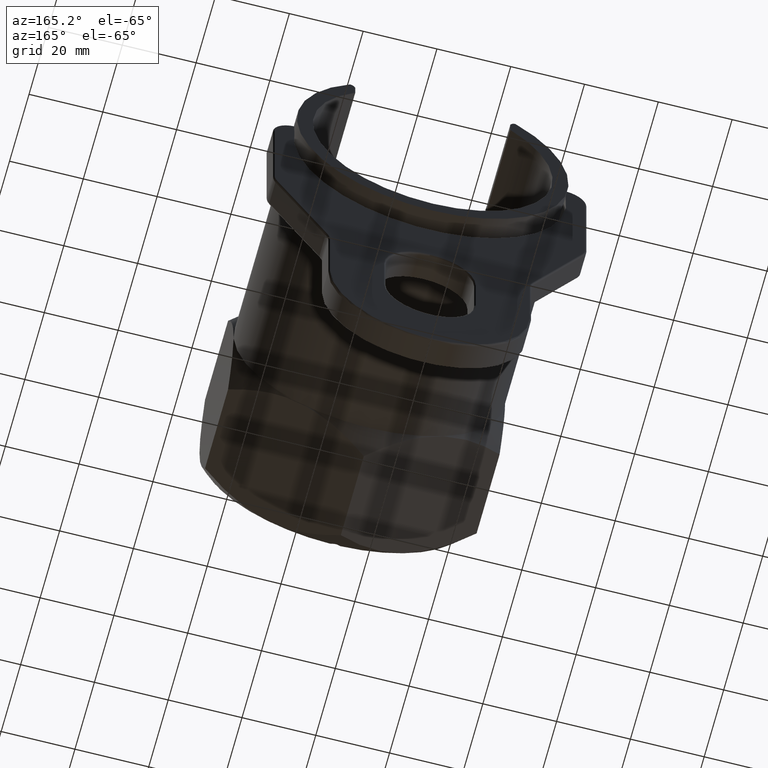
[diagram: clean part render]
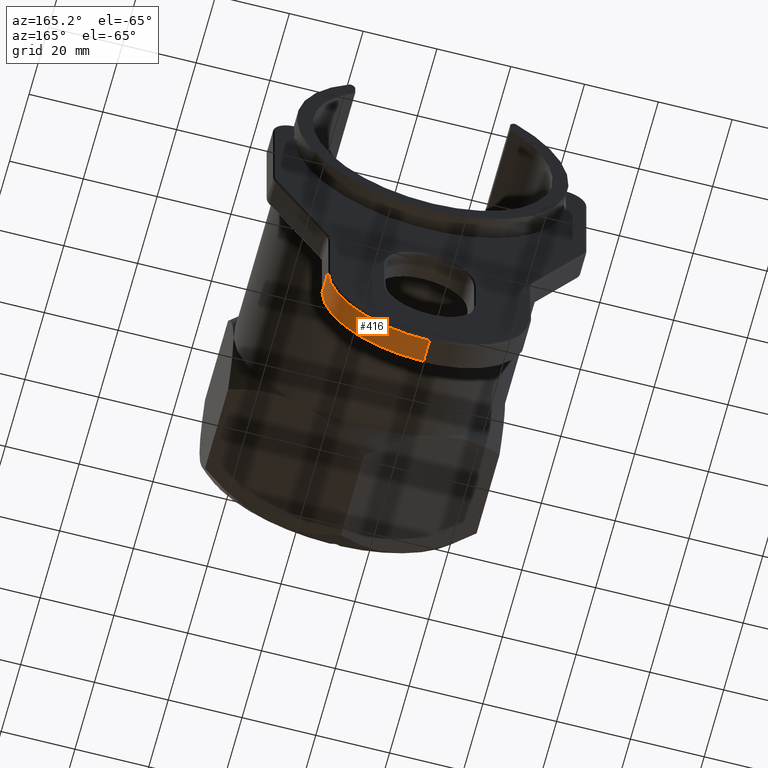
[diagram: same view with one face highlighted and labeled with its STEP entity id]
A machine part, auxiliary view. The second image highlights one B-rep face of the part: STEP entity #416.
In plain terms, the highlighted cylindrical surface (partial cylindrical patch) has radius 27.5 mm, axis along (0, -1, 0).
Its self-contained STEP definition (entity closure, byte-faithful):
#308 = VERTEX_POINT ( 'NONE', #1134 ) ;
#312 = EDGE_CURVE ( 'NONE', #308, #313, #1132, .T. ) ;
#313 = VERTEX_POINT ( 'NONE', #1128 ) ;
#395 = EDGE_CURVE ( 'NONE', #426, #427, #1339, .T. ) ;
#400 = EDGE_LOOP ( 'NONE', ( #401, #402, #404, #2882 ) ) ;
#401 = ORIENTED_EDGE ( 'NONE', *, *, #312, .F. ) ;
#402 = ORIENTED_EDGE ( 'NONE', *, *, #403, .T. ) ;
#403 = EDGE_CURVE ( 'NONE', #308, #426, #1329, .T. ) ;
#404 = ORIENTED_EDGE ( 'NONE', *, *, #395, .T. ) ;
#416 = ADVANCED_FACE ( 'NONE', ( #1361 ), #1360, .T. ) ;
#426 = VERTEX_POINT ( 'NONE', #1405 ) ;
#427 = VERTEX_POINT ( 'NONE', #1404 ) ;
#1128 = CARTESIAN_POINT ( 'NONE',  ( 0.0000000000000000000, 90.50000000000000000, -110.5000000000000100 ) ) ;
#1129 = DIRECTION ( 'NONE',  ( 0.0000000000000000000, -1.000000000000000000, 0.0000000000000000000 ) ) ;
#1130 = VECTOR ( 'NONE', #1129, 1000.000000000000000 ) ;
#1131 = CARTESIAN_POINT ( 'NONE',  ( 0.0000000000000000000, 97.19999999999998900, -110.5000000000000000 ) ) ;
#1132 = LINE ( 'NONE', #1131, #1130 ) ;
#1134 = CARTESIAN_POINT ( 'NONE',  ( 0.0000000000000000000, 96.69999999999998900, -110.5000000000000100 ) ) ;
#1325 = DIRECTION ( 'NONE',  ( 0.0000000000000000000, 0.0000000000000000000, 1.000000000000000000 ) ) ;
#1326 = DIRECTION ( 'NONE',  ( 0.0000000000000000000, -1.000000000000000000, 0.0000000000000000000 ) ) ;
#1327 = CARTESIAN_POINT ( 'NONE',  ( 0.0000000000000000000, 96.69999999999998900, -83.00000000000000000 ) ) ;
#1328 = AXIS2_PLACEMENT_3D ( 'NONE', #1327, #1326, #1325 ) ;
#1329 = CIRCLE ( 'NONE', #1328, 27.49999999999999600 ) ;
#1336 = DIRECTION ( 'NONE',  ( 0.0000000000000000000, -1.000000000000000000, 0.0000000000000000000 ) ) ;
#1337 = VECTOR ( 'NONE', #1336, 1000.000000000000000 ) ;
#1338 = CARTESIAN_POINT ( 'NONE',  ( 27.50000000000000000, 97.19999999999998900, -83.00000000000000000 ) ) ;
#1339 = LINE ( 'NONE', #1338, #1337 ) ;
#1356 = DIRECTION ( 'NONE',  ( 0.0000000000000000000, 0.0000000000000000000, -1.000000000000000000 ) ) ;
#1357 = DIRECTION ( 'NONE',  ( 0.0000000000000000000, -1.000000000000000000, 0.0000000000000000000 ) ) ;
#1358 = CARTESIAN_POINT ( 'NONE',  ( 0.0000000000000000000, 97.19999999999998900, -83.00000000000000000 ) ) ;
#1359 = AXIS2_PLACEMENT_3D ( 'NONE', #1358, #1357, #1356 ) ;
#1360 = CYLINDRICAL_SURFACE ( 'NONE', #1359, 27.49999999999999600 ) ;
#1361 = FACE_OUTER_BOUND ( 'NONE', #400, .T. ) ;
#1404 = CARTESIAN_POINT ( 'NONE',  ( 27.50000000000000000, 90.50000000000000000, -83.00000000000000000 ) ) ;
#1405 = CARTESIAN_POINT ( 'NONE',  ( 27.50000000000000000, 96.69999999999998900, -83.00000000000000000 ) ) ;
#1946 = DIRECTION ( 'NONE',  ( 0.0000000000000000000, 0.0000000000000000000, 1.000000000000000000 ) ) ;
#1947 = DIRECTION ( 'NONE',  ( 0.0000000000000000000, 1.000000000000000000, 0.0000000000000000000 ) ) ;
#1948 = CARTESIAN_POINT ( 'NONE',  ( 0.0000000000000000000, 90.50000000000000000, -83.00000000000000000 ) ) ;
#1949 = AXIS2_PLACEMENT_3D ( 'NONE', #1948, #1947, #1946 ) ;
#1950 = CIRCLE ( 'NONE', #1949, 27.49999999999999600 ) ;
#2879 = EDGE_CURVE ( 'NONE', #427, #313, #1950, .T. ) ;
#2882 = ORIENTED_EDGE ( 'NONE', *, *, #2879, .T. ) ;